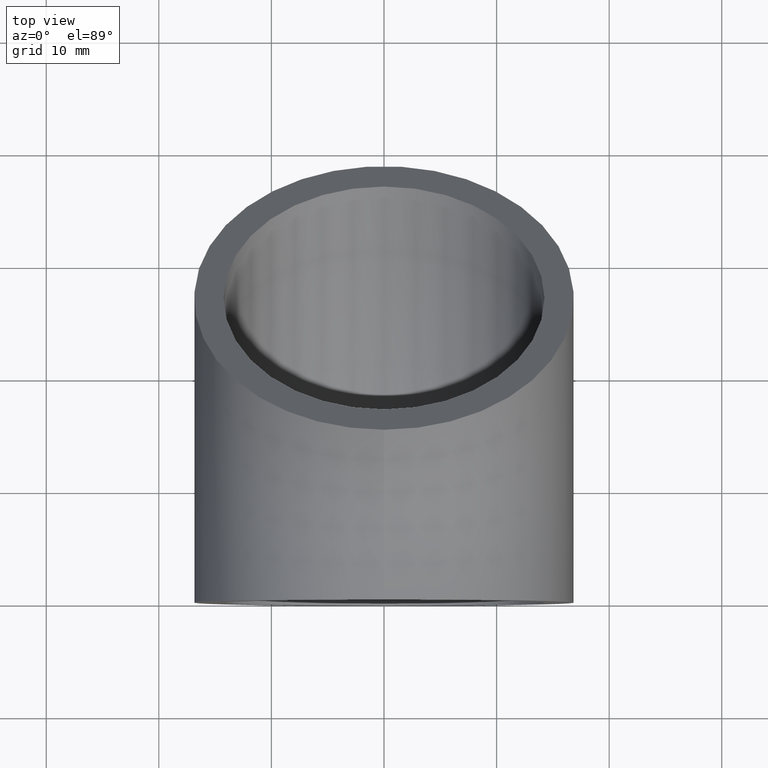
[diagram: clean part render]
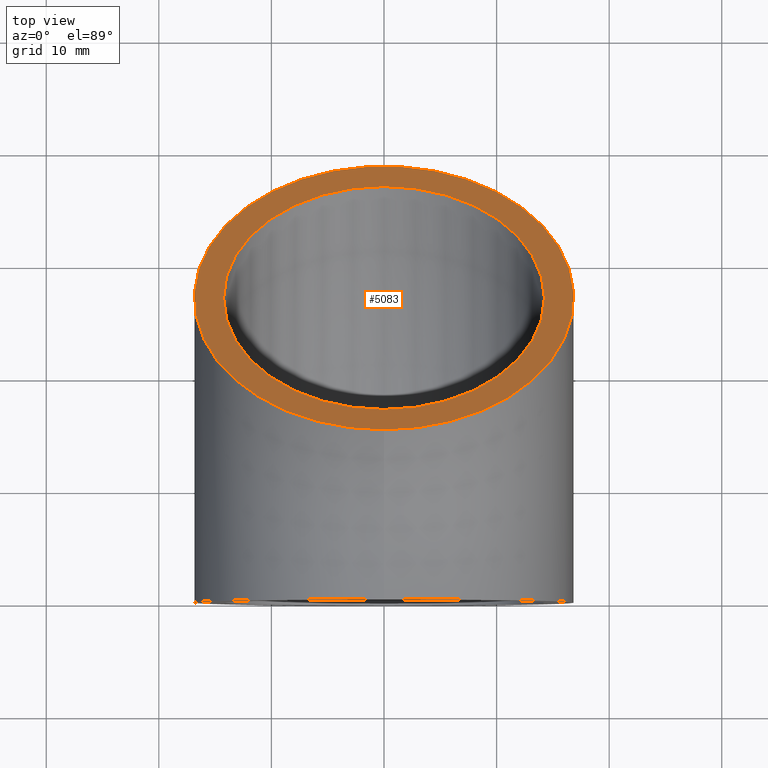
[diagram: same view with one face highlighted and labeled with its STEP entity id]
A machine part, top view. The second image highlights one B-rep face of the part: STEP entity #5083.
In plain terms, the highlighted planar face has unit normal (0, 0.7071, 0.7071).
Its self-contained STEP definition (entity closure, byte-faithful):
#176 = EDGE_LOOP ( 'NONE', ( #5565 ) ) ;
#227 = FACE_OUTER_BOUND ( 'NONE', #4121, .T. ) ;
#269 = EDGE_CURVE ( 'NONE', #5231, #5231, #785, .T. ) ;
#558 = AXIS2_PLACEMENT_3D ( 'NONE', #3157, #2330, #7430 ) ;
#785 = CIRCLE ( 'NONE', #558, 14.25000000000000000 ) ;
#1044 = DIRECTION ( 'NONE',  ( 0.000000000000000000, 0.7071067811865473507, 0.7071067811865476838 ) ) ;
#1206 = CARTESIAN_POINT ( 'NONE',  ( 0.000000000000000000, 26.87005768508880976, -26.87005768508879910 ) ) ;
#1237 = DIRECTION ( 'NONE',  ( 0.000000000000000000, 0.7071067811865473507, 0.7071067811865477948 ) ) ;
#1559 = CIRCLE ( 'NONE', #3992, 16.85000000000000142 ) ;
#2330 = DIRECTION ( 'NONE',  ( 0.000000000000000000, 0.7071067811865473507, 0.7071067811865476838 ) ) ;
#3157 = CARTESIAN_POINT ( 'NONE',  ( 0.000000000000000000, 26.87005768508880976, -26.87005768508879910 ) ) ;
#3541 = EDGE_CURVE ( 'NONE', #8694, #8694, #1559, .T. ) ;
#3718 = DIRECTION ( 'NONE',  ( 0.000000000000000000, -0.7071067811865477948, 0.7071067811865473507 ) ) ;
#3720 = CARTESIAN_POINT ( 'NONE',  ( 0.000000000000000000, 16.79378605318050788, -16.79378605318050077 ) ) ;
#3992 = AXIS2_PLACEMENT_3D ( 'NONE', #9518, #1044, #4429 ) ;
#4121 = EDGE_LOOP ( 'NONE', ( #7367 ) ) ;
#4429 = DIRECTION ( 'NONE',  ( 0.000000000000000000, -0.7071067811865476838, 0.7071067811865473507 ) ) ;
#4776 = AXIS2_PLACEMENT_3D ( 'NONE', #1206, #1237, #3718 ) ;
#5083 = ADVANCED_FACE ( 'NONE', ( #8478, #227 ), #6262, .T. ) ;
#5231 = VERTEX_POINT ( 'NONE', #3720 ) ;
#5565 = ORIENTED_EDGE ( 'NONE', *, *, #269, .F. ) ;
#6262 = PLANE ( 'NONE',  #4776 ) ;
#7200 = CARTESIAN_POINT ( 'NONE',  ( 0.000000000000000000, 14.95530842209548261, -14.95530842209547373 ) ) ;
#7367 = ORIENTED_EDGE ( 'NONE', *, *, #3541, .T. ) ;
#7430 = DIRECTION ( 'NONE',  ( 0.000000000000000000, -0.7071067811865477948, 0.7071067811865472397 ) ) ;
#8478 = FACE_BOUND ( 'NONE', #176, .T. ) ;
#8694 = VERTEX_POINT ( 'NONE', #7200 ) ;
#9518 = CARTESIAN_POINT ( 'NONE',  ( 0.000000000000000000, 26.87005768508880976, -26.87005768508879910 ) ) ;